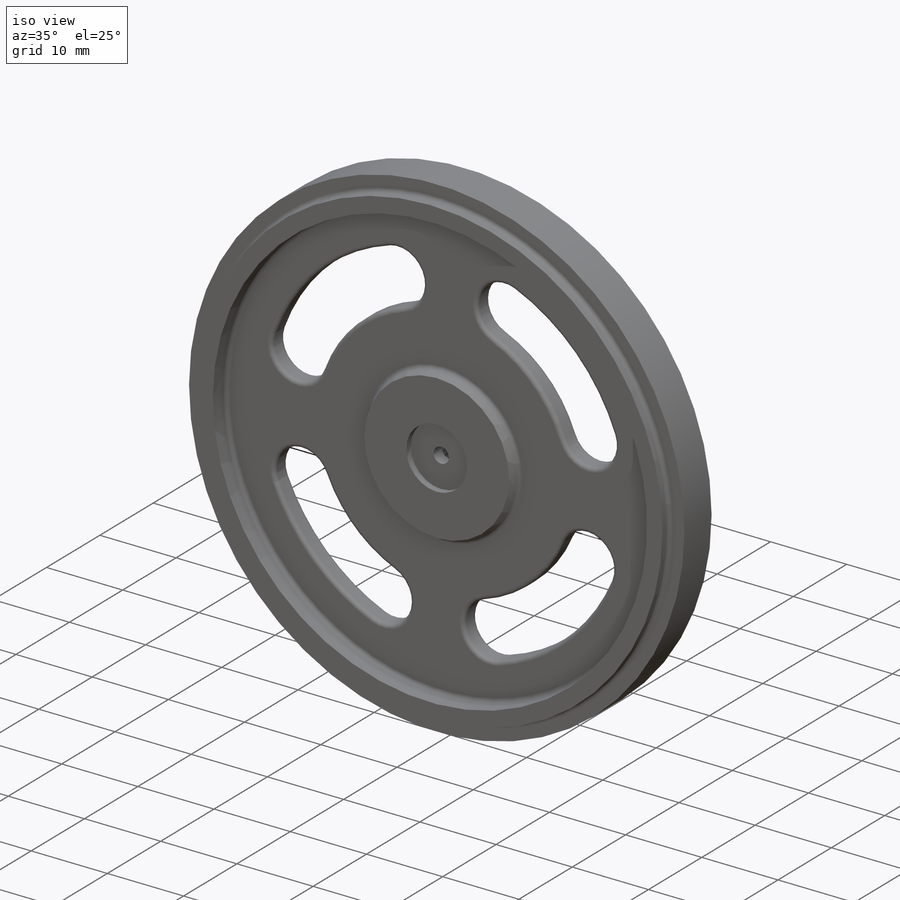
[diagram: iso view]
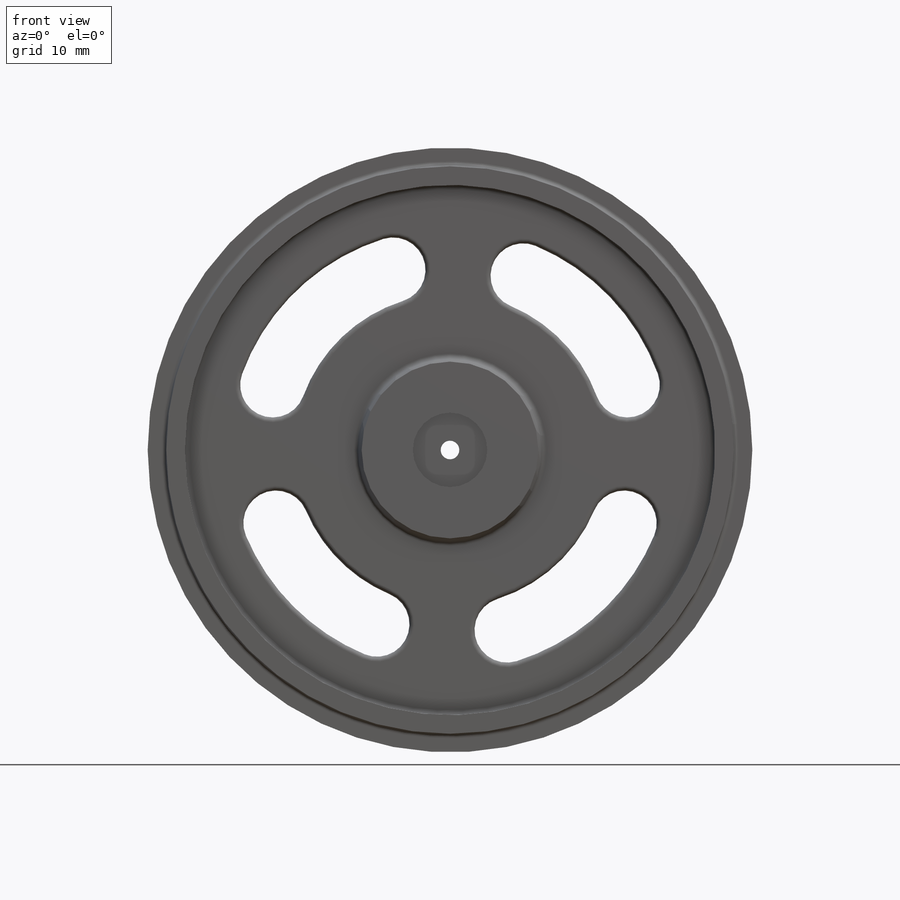
[diagram: front view]
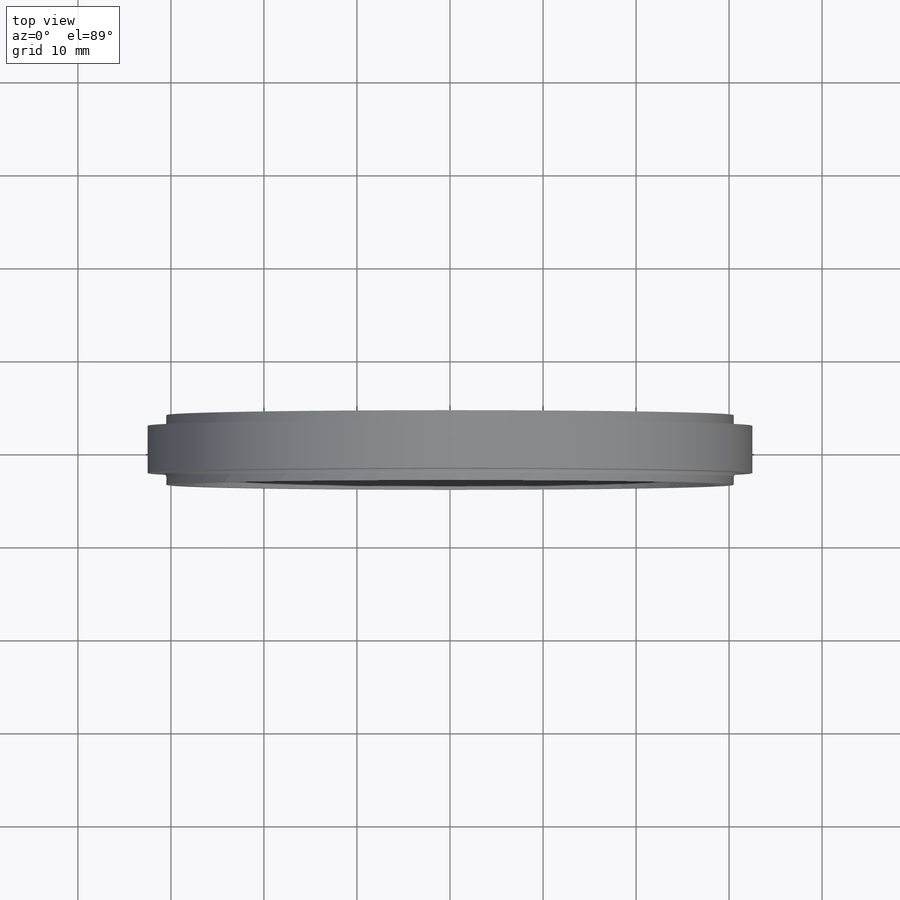
[diagram: top view]
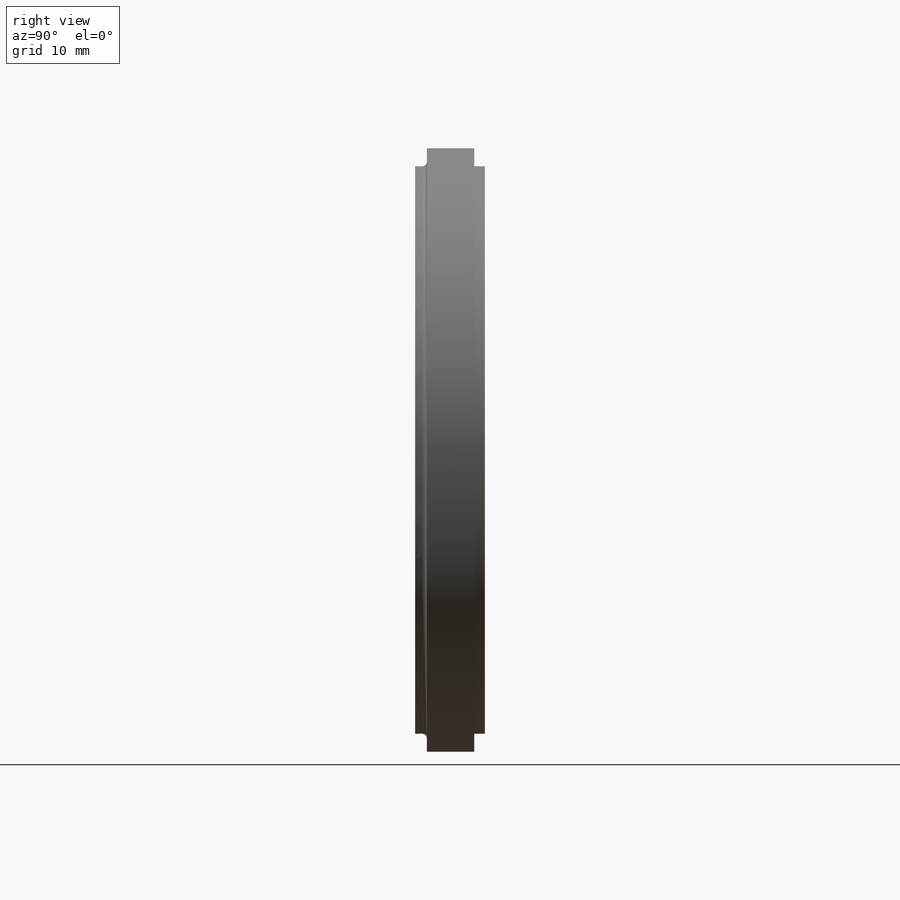
[diagram: right view]
SOLIDWORKS PART (.sldprt)
format: sldprt  version: not decoded by parser v0  size: 970,752 bytes
history: native  units: mm
features: sketch x3, cut_extrude x2, material x1, revolve x1, fillet x1 (+16 scaffold rows collapsed)
feature tree (24):
  scaffold x16  (default folders/planes/origin — collapsed)
  material  "Material <not specified>"
  sketch  "Sketch1"  dims[c1.D1=7.5mm c1.D2=32.5mm c1.D3=3.81mm c1.D4=50.0mm c1.D5=5.1mm c1.D6=2.54mm c1.D7=2.0mm c1.D8=2.0mm c2.D2=32.5mm c2.D9=2.5mm c2.D10=1.125mm c2.D11=1.3425mm c3.D11=45.0deg c3.D12=~5.053579mm c4.D12=30.0deg c5.D12=2.685mm c6.D12=120.0deg c6.D13=2.75mm c6.D14=1.0mm c6.D15=2.0mm c6.D16=1.5mm c6.D17=2.0mm c6.D18=6.5mm c6.D19=1.25mm c6.D10=2.5mm c6.D20=2.5mm c7.D12=5.0mm c7.D17=4.5mm c7.D20=2.75mm c7.D14=3.85mm c7.D11=1.25mm c7.D15=0.85mm c7.D16=2.0mm c7.D19=10.0mm c7.D18=9.5mm c8.D20=4.0mm c8.D6=2.55mm]
  revolve  "Revolve1"  Angle=360deg
  sketch  "Sketch2"  dims[c1.D1=~32.988543mm c1.D2=19.37mm c1.D3=48.37mm c2.D1=7.0mm c2.D2=6.8mm c2.D3=7.0mm c2.D4=7.0mm c2.D5=3.5mm c2.D6=3.5mm c3.D3=7.0mm c3.D4=~18.71898mm c3.D5=7.0mm c3.D6=~18.71898mm c3.D7=~18.71898mm c3.D8=~18.71898mm c3.D9=14.0mm c3.D10=14.0mm]
  cut_extrude  "Extrude1"  [1 undecoded]
  fillet  "Fillet1"  Radius=0.5mm
  sketch  "Sketch3"  dims[c1.D1=6.0mm c1.D7=0.025mm c1.D2=3.0mm c2.D2=10.0deg c2.D3=~0.165476mm c3.D3=2.5deg c3.D4=~2.478461mm c4.D4=2.5deg c4.D5=~0.247754mm c5.D5=10.0deg c5.D6=~0.256185mm c6.D6=10.0deg]
  cut_extrude  "Extrude2"  [1 undecoded]
decode coverage: 5 of 7 modeling features carry decoded parameters
note: ~ marks probable driven/reference dimensions
note: 2 parameter values undecoded
note: suppression state not decoded; provenance and decode notes live in map.json
